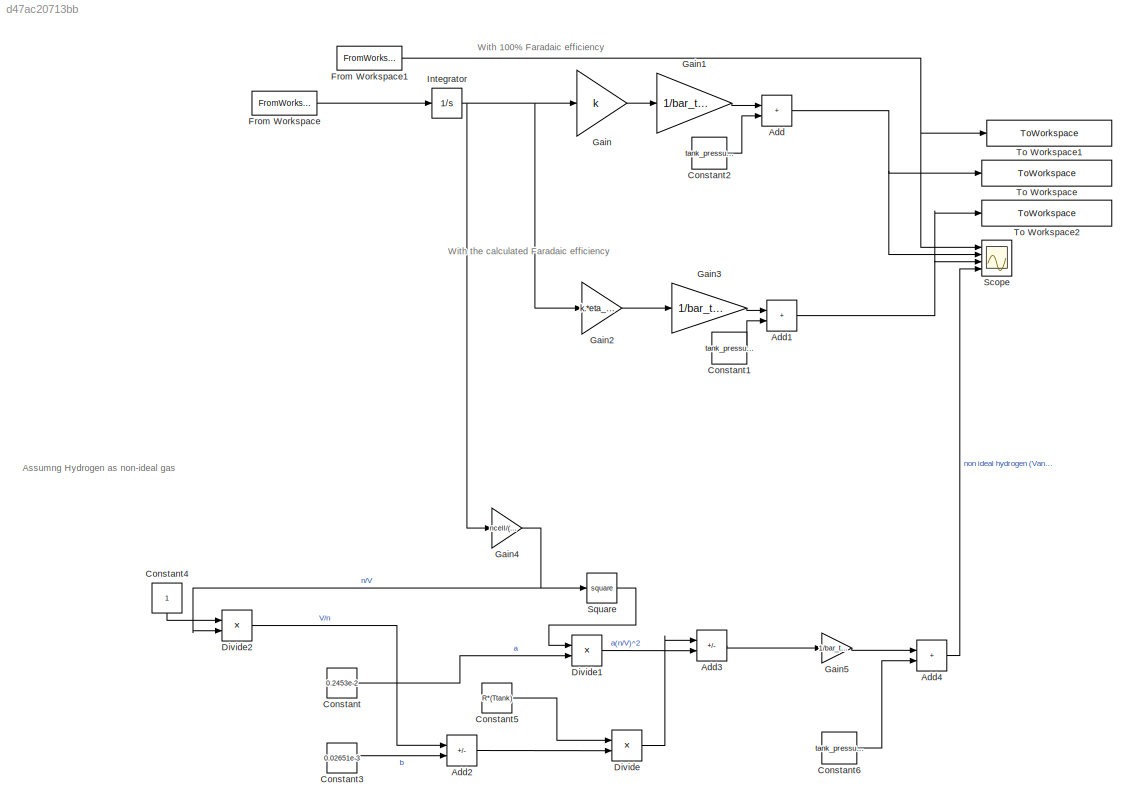
MODEL slx_d47ac20713bb
KIND model
CONFIG AbsTol = auto
CONFIG EnableMultiTasking = off
CONFIG FixedStep = 1
CONFIG MaxStep = auto
CONFIG MinStep = auto
CONFIG RelTol = 1e-3
CONFIG SampleTimeConstraint = Unconstrained
CONFIG SolverName = FixedStepAuto
CONFIG StartTime = tank_pressure.time(1)
CONFIG StopTime = tank_pressure.time(end)
BLOCK [Sum] Add
  IconShape = rectangular
  Ports = [2, 1]
BLOCK [Sum] Add1
  IconShape = rectangular
  Ports = [2, 1]
BLOCK [Sum] Add2
  IconShape = rectangular
  Inputs = +-
  Ports = [2, 1]
BLOCK [Sum] Add3
  IconShape = rectangular
  Inputs = +-
  Ports = [2, 1]
BLOCK [Sum] Add4
  IconShape = rectangular
  Ports = [2, 1]
BLOCK [Constant] Constant
  Value = 0.2453e-2
BLOCK [Constant] Constant1
  Value = tank_pressure.Data(1)
BLOCK [Constant] Constant2
  Value = tank_pressure.Data(1)
BLOCK [Constant] Constant3
  Value = 0.02651e-3
BLOCK [Constant] Constant4
  NameLocation = left
BLOCK [Constant] Constant5
  Value = R*(Ttank)
  VectorParams1D = off
BLOCK [Constant] Constant6
  Value = tank_pressure.Data(1)
BLOCK [Product] Divide
  Inputs = */
  Ports = [2, 1]
BLOCK [Product] Divide1
  Inputs = **
  Ports = [2, 1]
BLOCK [Product] Divide2
  Inputs = */
  Ports = [2, 1]
BLOCK [FromWorkspace] From Workspace
  OutputAfterFinalValue = Holding final value
  SampleTime = 1
  VariableName = stack_current
BLOCK [FromWorkspace] From Workspace1
  SampleTime = 1
  VariableName = tank_pressure
BLOCK [Gain] Gain
  Gain = k
BLOCK [Gain] Gain1
  Gain = 1/bar_to_Pa
BLOCK [Gain] Gain2
  Gain = k.*eta_Faraday_builtin
BLOCK [Gain] Gain3
  Gain = 1/bar_to_Pa
BLOCK [Gain] Gain4
  Gain = ncell/(2*F*Vtank)
BLOCK [Gain] Gain5
  Gain = 1/bar_to_Pa
BLOCK [Integrator] Integrator
  Ports = [1, 1]
BLOCK [Scope] Scope
  Floating = off
  NumInputPorts = 4
  Ports = [4]
  ScopeSpecificationString = Simulink.scopes.TimeScopeBlockCfg('CurrentConfiguration', extmgr.ConfigurationSet(extmgr.Configuration('Core','General UI',true),extmgr.Configuration('Core','Source UI',true),extmgr.Configuration('Sources','WiredSimulink',true),extmgr.Configuration('Visuals','Time Domain',true,'SerializedDisplays',{struct('MinYLimReal','13.76652','MaxYLimReal','15.94276','YLabelReal','','MinYLimMag','13.76652','Ma...<+1464ch>
BLOCK [Math] Square
  Operator = square
  Ports = [1, 1]
BLOCK [ToWorkspace] To Workspace
  FixptAsFi = on
  MaxDataPoints = inf
  Ports = [1]
  SampleTime = -1
  SaveFormat = Timeseries
  VariableName = tank_pressure_predict
BLOCK [ToWorkspace] To Workspace1
  FixptAsFi = on
  MaxDataPoints = inf
  Ports = [1]
  SampleTime = -1
  SaveFormat = Timeseries
  VariableName = tank_pressure_real
BLOCK [ToWorkspace] To Workspace2
  FixptAsFi = on
  MaxDataPoints = inf
  Ports = [1]
  SampleTime = -1
  SaveFormat = Timeseries
  VariableName = tank_pressure_predict_eta
ANNOTATION (root): Assumng Hydrogen as non-ideal gas
ANNOTATION (root): With 100% Faradaic efficiency
ANNOTATION (root): With the calculated Faradaic efficiency
NET Add1:1 -> Scope:3, To Workspace2:1
LINE Add2:1 -> Divide:2
LINE Add3:1 -> Gain5:1
LINE Add4:1 -> Scope:4
NET Add:1 -> Scope:2, To Workspace:1
LINE Constant1:1 -> Add1:2
LINE Constant2:1 -> Add:2
LINE Constant3:1 -> Add2:2
LINE Constant4:1 -> Divide2:1
LINE Constant5:1 -> Divide:1
LINE Constant6:1 -> Add4:2
LINE Constant:1 -> Divide1:2
LINE Divide1:1 -> Add3:2
LINE Divide2:1 -> Add2:1
LINE Divide:1 -> Add3:1
NET From Workspace1:1 -> Scope:1, To Workspace1:1
LINE From Workspace:1 -> Integrator:1
LINE Gain1:1 -> Add:1
LINE Gain2:1 -> Gain3:1
LINE Gain3:1 -> Add1:1
NET Gain4:1 -> Divide2:2, Square:1
LINE Gain5:1 -> Add4:1
LINE Gain:1 -> Gain1:1
NET Integrator:1 -> Gain2:1, Gain4:1, Gain:1
LINE Square:1 -> Divide1:1
note: NET lines group one-source signal fan-out (src -> all destinations, sorted); 1:1 wires keep LINE
